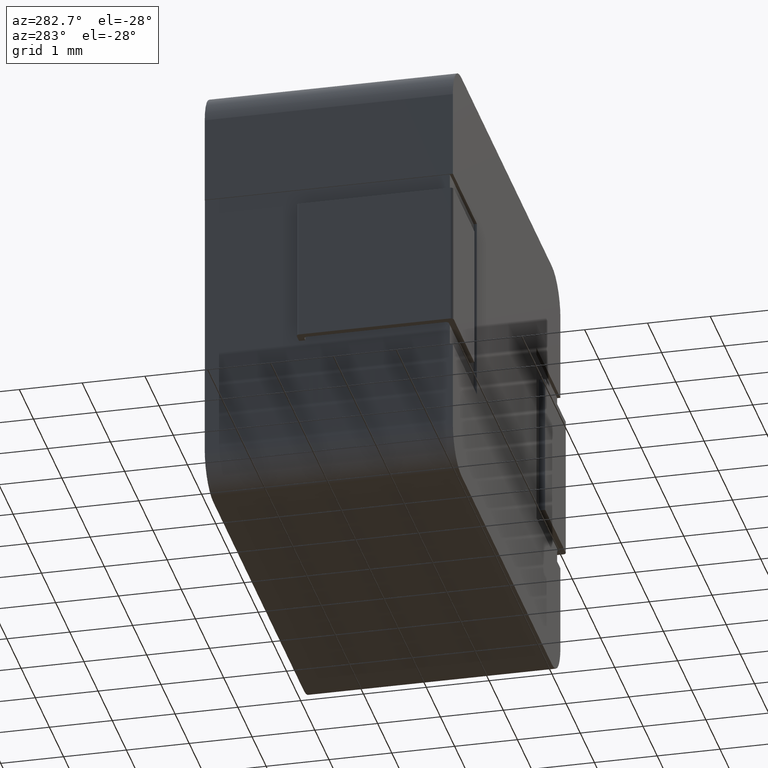
[diagram: clean part render]
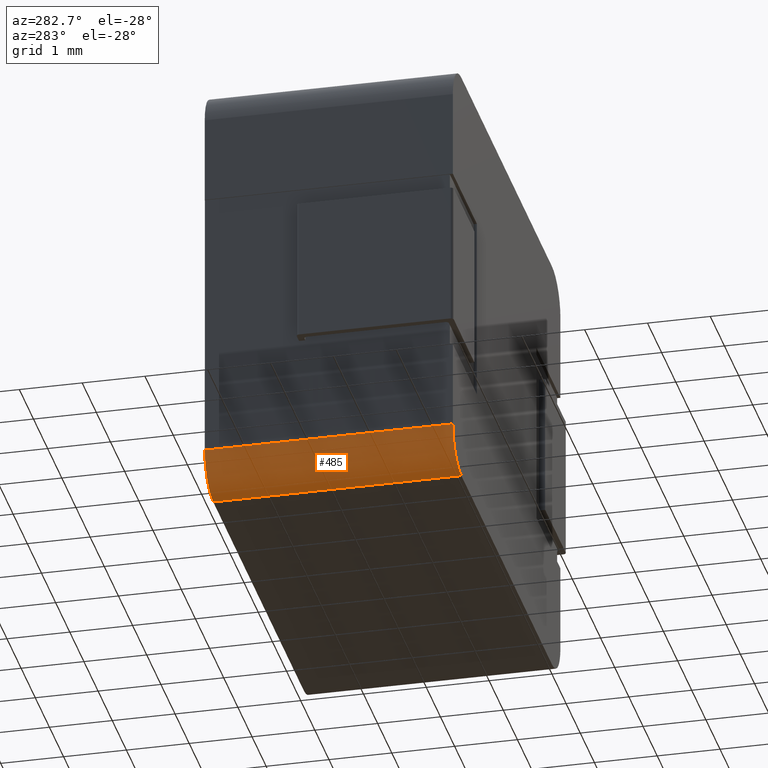
[diagram: same view with one face highlighted and labeled with its STEP entity id]
A machine part, auxiliary view. The second image highlights one B-rep face of the part: STEP entity #485.
In plain terms, the highlighted cylindrical surface (partial cylindrical patch) has radius 0.5999 mm, axis along (0, -1, 0).
Its self-contained STEP definition (entity closure, byte-faithful):
#332 = ORIENTED_EDGE ( 'NONE', *, *, #3207, .F. ) ;
#340 = ORIENTED_EDGE ( 'NONE', *, *, #841, .F. ) ;
#485 = ADVANCED_FACE ( 'NONE', ( #1480 ), #1171, .T. ) ;
#611 = CARTESIAN_POINT ( 'NONE',  ( 0.5998999999999997700, 3.950000000000000200, -7.000000000000000000 ) ) ;
#639 = CIRCLE ( 'NONE', #673, 0.5999000000000004300 ) ;
#673 = AXIS2_PLACEMENT_3D ( 'NONE', #3881, #3313, #3279 ) ;
#703 = CARTESIAN_POINT ( 'NONE',  ( 0.5998999999999997700, 0.0000000000000000000, -7.000000000000000000 ) ) ;
#763 = CARTESIAN_POINT ( 'NONE',  ( 0.0000000000000000000, 0.0000000000000000000, -6.400100000000001000 ) ) ;
#833 = ORIENTED_EDGE ( 'NONE', *, *, #3640, .F. ) ;
#841 = EDGE_CURVE ( 'NONE', #1282, #3084, #3275, .T. ) ;
#851 = DIRECTION ( 'NONE',  ( 0.0000000000000000000, -1.000000000000000000, 0.0000000000000000000 ) ) ;
#904 = LINE ( 'NONE', #1956, #1357 ) ;
#925 = EDGE_LOOP ( 'NONE', ( #340, #332, #833, #2561 ) ) ;
#1001 = DIRECTION ( 'NONE',  ( 0.0000000000000000000, -1.000000000000000000, 0.0000000000000000000 ) ) ;
#1171 = CYLINDRICAL_SURFACE ( 'NONE', #3135, 0.5999000000000004300 ) ;
#1268 = DIRECTION ( 'NONE',  ( -0.0000000000000000000, 1.000000000000000000, -0.0000000000000000000 ) ) ;
#1282 = VERTEX_POINT ( 'NONE', #611 ) ;
#1357 = VECTOR ( 'NONE', #1363, 1000.000000000000000 ) ;
#1363 = DIRECTION ( 'NONE',  ( -0.0000000000000000000, 1.000000000000000000, -0.0000000000000000000 ) ) ;
#1480 = FACE_OUTER_BOUND ( 'NONE', #925, .T. ) ;
#1556 = CARTESIAN_POINT ( 'NONE',  ( 0.5998999999999999900, 3.950000000000000200, -6.400100000000001000 ) ) ;
#1641 = VERTEX_POINT ( 'NONE', #763 ) ;
#1894 = CARTESIAN_POINT ( 'NONE',  ( 0.0000000000000000000, 3.950000000000000200, -6.400100000000001000 ) ) ;
#1908 = CARTESIAN_POINT ( 'NONE',  ( 0.5998999999999999900, 3.950000000000000200, -6.400100000000001000 ) ) ;
#1956 = CARTESIAN_POINT ( 'NONE',  ( 0.5998999999999999900, 3.950000000000000200, -7.000000000000000000 ) ) ;
#2456 = CARTESIAN_POINT ( 'NONE',  ( 0.0000000000000000000, 3.950000000000000200, -6.400100000000001000 ) ) ;
#2561 = ORIENTED_EDGE ( 'NONE', *, *, #3974, .F. ) ;
#3084 = VERTEX_POINT ( 'NONE', #1894 ) ;
#3135 = AXIS2_PLACEMENT_3D ( 'NONE', #1556, #1001, #3247 ) ;
#3207 = EDGE_CURVE ( 'NONE', #3592, #1282, #904, .T. ) ;
#3247 = DIRECTION ( 'NONE',  ( 0.0000000000000000000, 0.0000000000000000000, -1.000000000000000000 ) ) ;
#3275 = CIRCLE ( 'NONE', #3787, 0.5999000000000004300 ) ;
#3279 = DIRECTION ( 'NONE',  ( 0.0000000000000000000, 0.0000000000000000000, -1.000000000000000000 ) ) ;
#3313 = DIRECTION ( 'NONE',  ( 0.0000000000000000000, -1.000000000000000000, 0.0000000000000000000 ) ) ;
#3453 = VECTOR ( 'NONE', #851, 1000.000000000000000 ) ;
#3503 = DIRECTION ( 'NONE',  ( 0.0000000000000000000, 0.0000000000000000000, -1.000000000000000000 ) ) ;
#3592 = VERTEX_POINT ( 'NONE', #703 ) ;
#3640 = EDGE_CURVE ( 'NONE', #1641, #3592, #639, .T. ) ;
#3787 = AXIS2_PLACEMENT_3D ( 'NONE', #1908, #1268, #3503 ) ;
#3881 = CARTESIAN_POINT ( 'NONE',  ( 0.5998999999999999900, 0.0000000000000000000, -6.400100000000001000 ) ) ;
#3974 = EDGE_CURVE ( 'NONE', #3084, #1641, #3989, .T. ) ;
#3989 = LINE ( 'NONE', #2456, #3453 ) ;